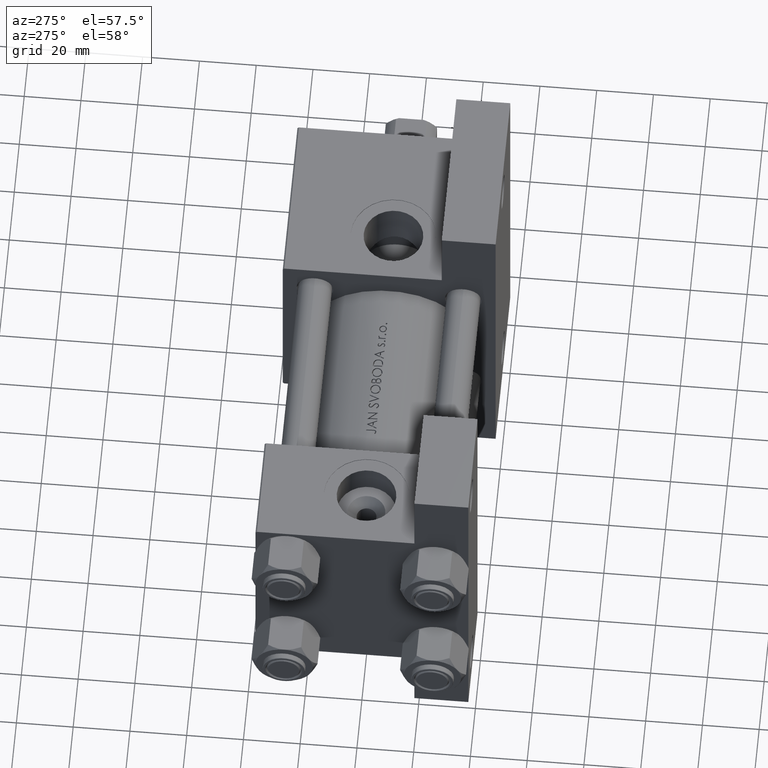
[diagram: clean part render]
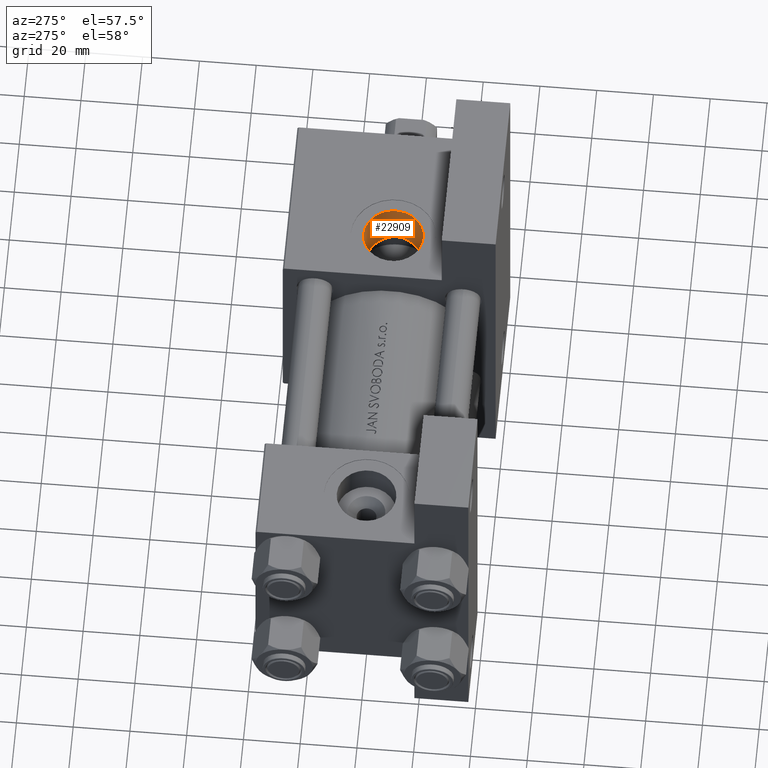
[diagram: same view with one face highlighted and labeled with its STEP entity id]
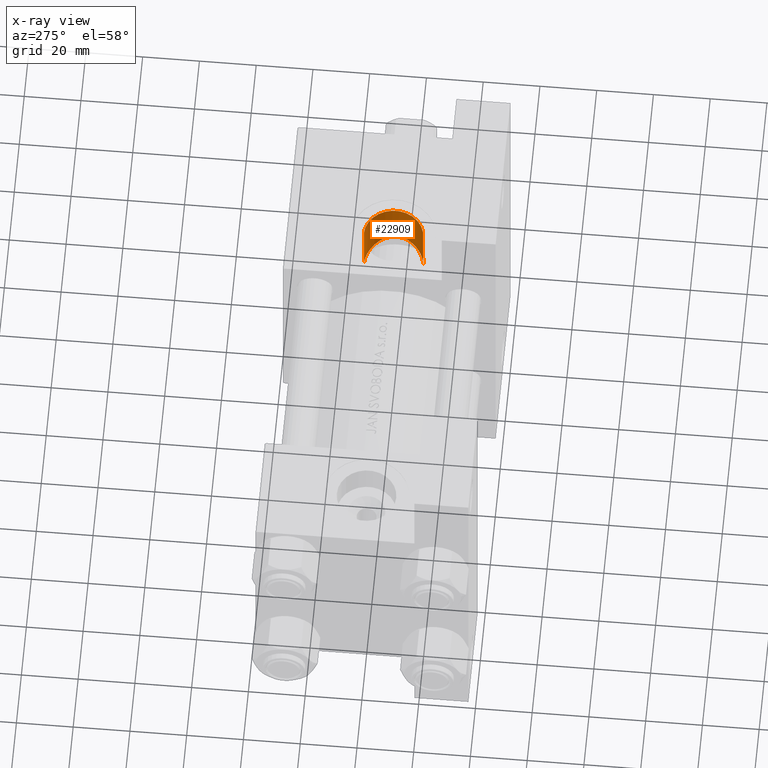
[diagram: x-ray of the same camera — body ghosted, the highlighted face saturated]
A machine part, auxiliary view. The second image highlights one B-rep face of the part: STEP entity #22909.
The next image is the same camera in x-ray: the body ghosted, the highlighted face saturated — about 0% of this face is hidden behind the body in this view.
In plain terms, the highlighted cylindrical surface (edge-blend (fillet) strip) has radius 10.48 mm, axis along (-0, -0, 1).
Its self-contained STEP definition (entity closure, byte-faithful):
#88 = CARTESIAN_POINT ( 'NONE',  ( 133.9416544847751425, -19.13207627753017093, -7.880695095096321268 ) ) ;
#145 = VERTEX_POINT ( 'NONE', #28107 ) ;
#149 = LINE ( 'NONE', #18558, #26341 ) ;
#201 = VERTEX_POINT ( 'NONE', #43781 ) ;
#1270 = DIRECTION ( 'NONE',  ( 0.000000000000000000, 0.000000000000000000, -1.000000000000000000 ) ) ;
#3319 = CARTESIAN_POINT ( 'NONE',  ( 135.2943842801269909, -19.29805340160766747, 6.441284550439725365 ) ) ;
#3434 = DIRECTION ( 'NONE',  ( -0.000000000000000000, -1.000000000000000000, -8.673617379884036705E-17 ) ) ;
#3572 = CARTESIAN_POINT ( 'NONE',  ( 137.4776551375226745, -20.48265569949338527, 0.4117595292702403986 ) ) ;
#3825 = CARTESIAN_POINT ( 'NONE',  ( 137.3852102648228595, -20.41012014665353647, 1.448585321857994046 ) ) ;
#4255 = EDGE_LOOP ( 'NONE', ( #47741, #13443, #24731, #25389 ) ) ;
#4725 = CARTESIAN_POINT ( 'NONE',  ( 135.3225662003737853, -19.64111042044597966, -6.378170050295206117 ) ) ;
#6195 = CARTESIAN_POINT ( 'NONE',  ( 128.4044395936603848, -17.95581939429250440, -10.39141979412304018 ) ) ;
#7054 = CARTESIAN_POINT ( 'NONE',  ( 131.6848851208464168, -17.95378683072778259, 9.399761861338273405 ) ) ;
#7304 = CARTESIAN_POINT ( 'NONE',  ( 133.3953719826940016, -18.50579674927558571, 8.329556230503518677 ) ) ;
#8458 = CARTESIAN_POINT ( 'NONE',  ( 133.9208345979154160, -18.70786800614511236, 7.898040897294846374 ) ) ;
#9675 = CARTESIAN_POINT ( 'NONE',  ( 127.0000000000000000, -17.90669148670408362, -10.47999999999998089 ) ) ;
#10195 = B_SPLINE_CURVE_WITH_KNOTS ( 'NONE', 3,
 ( #44902, #25968, #16166, #26217, #41170, #27628, #15263, #7054, #22230, #7304, #8458, #37439, #3319, #41422, #18493, #33698, #48893, #30462, #23641, #45399, #3825, #37695, #3572, #31359, #18744, #12431, #35101, #15015, #30212, #42580, #38844, #22739, #37940, #42821, #4725, #18997, #34204, #88, #45652, #11535, #19889, #43065, #13660, #43799, #6195, #13165, #24855, #9675 ),
 .UNSPECIFIED., .F., .F.,
 ( 4, 2, 2, 2, 2, 2, 2, 2, 2, 2, 2, 2, 2, 2, 2, 2, 2, 2, 2, 2, 2, 2, 2, 4 ),
 ( 0.03337172289375579803, 0.03441233523662728944, 0.03545294757949878778, 0.03753417226524177752, 0.03961539695098476727, 0.04169662163672775701, 0.04377784632247074675, 0.04481845866534224510, 0.04585907100821373650, 0.04794029569395672624, 0.04898090803682821764, 0.05002152037969971599, 0.05106213272257120739, 0.05210274506544269879, 0.05418396975118569547, 0.05522458209405718688, 0.05626519443692867828, 0.05730580677980017662, 0.05834641912267166802, 0.06042764380841471328, 0.06250886849415776547, 0.06459009317990080379, 0.06563070552277236458, 0.06667131786564392537 ),
 .UNSPECIFIED. ) ;
#10257 = FACE_OUTER_BOUND ( 'NONE', #4255, .T. ) ;
#11535 = CARTESIAN_POINT ( 'NONE',  ( 132.2983228447828594, -18.62849765410346947, -9.067371222007587050 ) ) ;
#12431 = CARTESIAN_POINT ( 'NONE',  ( 137.4015008588858109, -20.48626732390679450, -1.327331865308764236 ) ) ;
#13165 = CARTESIAN_POINT ( 'NONE',  ( 127.7047145583874936, -17.91665127801144664, -10.46219065497899692 ) ) ;
#13443 = ORIENTED_EDGE ( 'NONE', *, *, #16717, .T. ) ;
#13492 = DIRECTION ( 'NONE',  ( -0.000000000000000000, -1.000000000000000000, -8.673617379884036705E-17 ) ) ;
#13660 = CARTESIAN_POINT ( 'NONE',  ( 129.7750123670571156, -18.09812027575558346, -10.12979723076933425 ) ) ;
#14963 = EDGE_CURVE ( 'NONE', #31898, #18379, #22087, .T. ) ;
#15015 = CARTESIAN_POINT ( 'NONE',  ( 137.1488622720015371, -20.39261420473474118, -2.705221023230777622 ) ) ;
#15263 = CARTESIAN_POINT ( 'NONE',  ( 130.4159050215026241, -17.65012615064442869, 9.931528811289364711 ) ) ;
#16166 = CARTESIAN_POINT ( 'NONE',  ( 127.6954312938289036, -17.32248566803110634, 10.46281023584331038 ) ) ;
#16688 = CARTESIAN_POINT ( 'NONE',  ( 127.0000000000000000, -37.29999999999999716, 3.486794186713383443E-15 ) ) ;
#16717 = EDGE_CURVE ( 'NONE', #31898, #201, #10195, .T. ) ;
#18379 = VERTEX_POINT ( 'NONE', #23934 ) ;
#18493 = CARTESIAN_POINT ( 'NONE',  ( 136.0415136392023214, -19.66186875787548871, 5.310054482731720427 ) ) ;
#18558 = CARTESIAN_POINT ( 'NONE',  ( 127.0000000000000000, 37.50100000000000477, -10.47999999999997556 ) ) ;
#18744 = CARTESIAN_POINT ( 'NONE',  ( 137.4669051482524651, -20.50255402113293712, -0.6300211231001652257 ) ) ;
#18995 = AXIS2_PLACEMENT_3D ( 'NONE', #16688, #30921, #1270 ) ;
#18997 = CARTESIAN_POINT ( 'NONE',  ( 134.8913372837819509, -19.47582360453931116, -6.904560610471913051 ) ) ;
#19270 = VECTOR ( 'NONE', #3434, 1000.000000000000000 ) ;
#19889 = CARTESIAN_POINT ( 'NONE',  ( 131.6885837709134535, -18.47081169218747831, -9.397559365377061269 ) ) ;
#21942 = DIRECTION ( 'NONE',  ( 0.000000000000000000, 0.000000000000000000, -1.000000000000000000 ) ) ;
#22087 = LINE ( 'NONE', #37550, #19270 ) ;
#22188 = CYLINDRICAL_SURFACE ( 'NONE', #37835, 10.47999999999998622 ) ;
#22230 = CARTESIAN_POINT ( 'NONE',  ( 132.2787600379286630, -18.12953982762253347, 9.078379935655647159 ) ) ;
#22739 = CARTESIAN_POINT ( 'NONE',  ( 136.0783182432221849, -19.94519646484593167, -5.247152792081116068 ) ) ;
#22909 = ADVANCED_FACE ( 'NONE', ( #10257 ), #22188, .F. ) ;
#23641 = CARTESIAN_POINT ( 'NONE',  ( 137.1175830810126115, -20.24111318549748262, 2.820020607438566973 ) ) ;
#23934 = CARTESIAN_POINT ( 'NONE',  ( 127.0000000000000000, -37.29999999999999716, 10.47999999999998977 ) ) ;
#24731 = ORIENTED_EDGE ( 'NONE', *, *, #46250, .T. ) ;
#24855 = CARTESIAN_POINT ( 'NONE',  ( 127.3524141148301680, -17.90669148670409072, -10.47999999999998089 ) ) ;
#25389 = ORIENTED_EDGE ( 'NONE', *, *, #38390, .T. ) ;
#25968 = CARTESIAN_POINT ( 'NONE',  ( 127.3470210746792901, -17.31154528053460595, 10.47999999999999332 ) ) ;
#26217 = CARTESIAN_POINT ( 'NONE',  ( 128.3951252308202982, -17.36667489365846251, 10.39267281819420319 ) ) ;
#26341 = VECTOR ( 'NONE', #37757, 1000.000000000000000 ) ;
#27628 = CARTESIAN_POINT ( 'NONE',  ( 129.7588417203787685, -17.52693762274574496, 10.13402779325156722 ) ) ;
#28107 = CARTESIAN_POINT ( 'NONE',  ( 127.0000000000000000, -37.29999999999999716, -10.47999999999998266 ) ) ;
#30212 = CARTESIAN_POINT ( 'NONE',  ( 136.9485359727863738, -20.30891902702525798, -3.366903607565238321 ) ) ;
#30462 = CARTESIAN_POINT ( 'NONE',  ( 136.9112922687108380, -20.12166452589492138, 3.472274471029885401 ) ) ;
#30921 = DIRECTION ( 'NONE',  ( 0.000000000000000000, -1.000000000000000000, -8.673617379884036705E-17 ) ) ;
#31359 = CARTESIAN_POINT ( 'NONE',  ( 137.4819445000525775, -20.50178181377810560, -0.2822101851753039958 ) ) ;
#31898 = VERTEX_POINT ( 'NONE', #40187 ) ;
#33698 = CARTESIAN_POINT ( 'NONE',  ( 136.3662177968319611, -19.82832408839749760, 4.713768309937340639 ) ) ;
#34204 = CARTESIAN_POINT ( 'NONE',  ( 134.6611621740132705, -19.38999619374664363, -7.159076384942106408 ) ) ;
#35101 = CARTESIAN_POINT ( 'NONE',  ( 137.3507038963578566, -20.46901633175582091, -1.677836523642097788 ) ) ;
#37439 = CARTESIAN_POINT ( 'NONE',  ( 134.8679744497729303, -19.10325731143033323, 6.954996736502839561 ) ) ;
#37550 = CARTESIAN_POINT ( 'NONE',  ( 127.0000000000000000, 37.50100000000000477, 10.47999999999999687 ) ) ;
#37695 = CARTESIAN_POINT ( 'NONE',  ( 137.4583245133797504, -20.46430137750837019, 0.7579182357777449752 ) ) ;
#37757 = DIRECTION ( 'NONE',  ( -0.000000000000000000, -1.000000000000000000, -8.673617379884036705E-17 ) ) ;
#37835 = AXIS2_PLACEMENT_3D ( 'NONE', #40140, #13492, #21942 ) ;
#37940 = CARTESIAN_POINT ( 'NONE',  ( 135.9026386617617845, -19.87300753805845588, -5.539771893847150963 ) ) ;
#38390 = EDGE_CURVE ( 'NONE', #145, #18379, #40475, .T. ) ;
#38844 = CARTESIAN_POINT ( 'NONE',  ( 136.4025389929008725, -20.07976061505710064, -4.641199740976986732 ) ) ;
#40140 = CARTESIAN_POINT ( 'NONE',  ( 127.0000000000000000, 37.50100000000000477, 9.974746723040443104E-15 ) ) ;
#40187 = CARTESIAN_POINT ( 'NONE',  ( 127.0000000000000000, -17.31154528053461306, 10.47999999999999154 ) ) ;
#40475 = CIRCLE ( 'NONE', #18995, 10.47999999999998622 ) ;
#41170 = CARTESIAN_POINT ( 'NONE',  ( 128.7410054315663217, -17.39963274831550422, 10.34017078318249006 ) ) ;
#41422 = CARTESIAN_POINT ( 'NONE',  ( 135.8632463434475426, -19.57285682509593272, 5.602446212762894895 ) ) ;
#42580 = CARTESIAN_POINT ( 'NONE',  ( 136.5516556862485231, -20.14238090880650489, -4.326202217588885901 ) ) ;
#42821 = CARTESIAN_POINT ( 'NONE',  ( 135.5247630629396269, -19.72096722719660633, -6.105281524917136160 ) ) ;
#43065 = CARTESIAN_POINT ( 'NONE',  ( 130.4291236246859000, -18.20648317701849450, -9.926633415679274819 ) ) ;
#43781 = CARTESIAN_POINT ( 'NONE',  ( 127.0000000000000000, -17.90669148670408362, -10.47999999999998089 ) ) ;
#43799 = CARTESIAN_POINT ( 'NONE',  ( 128.7534701870719118, -17.98521153983802634, -10.33810977386607100 ) ) ;
#44902 = CARTESIAN_POINT ( 'NONE',  ( 127.0000000000000000, -17.31154528053461306, 10.47999999999999154 ) ) ;
#45399 = CARTESIAN_POINT ( 'NONE',  ( 137.3311065042815073, -20.37409322011634671, 1.794586109409237462 ) ) ;
#45652 = CARTESIAN_POINT ( 'NONE',  ( 133.4217440813015401, -18.95863385658994815, -8.309672003124298101 ) ) ;
#46250 = EDGE_CURVE ( 'NONE', #201, #145, #149, .T. ) ;
#47741 = ORIENTED_EDGE ( 'NONE', *, *, #14963, .F. ) ;
#48893 = CARTESIAN_POINT ( 'NONE',  ( 136.5136165929028209, -19.90621515629139537, 4.408684660160838931 ) ) ;